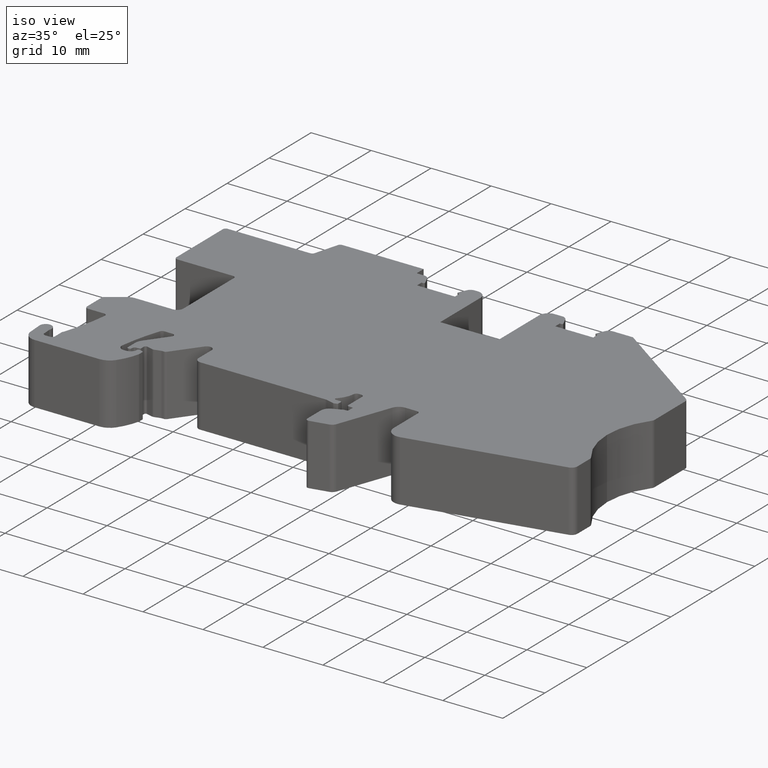
[diagram: clean part render]
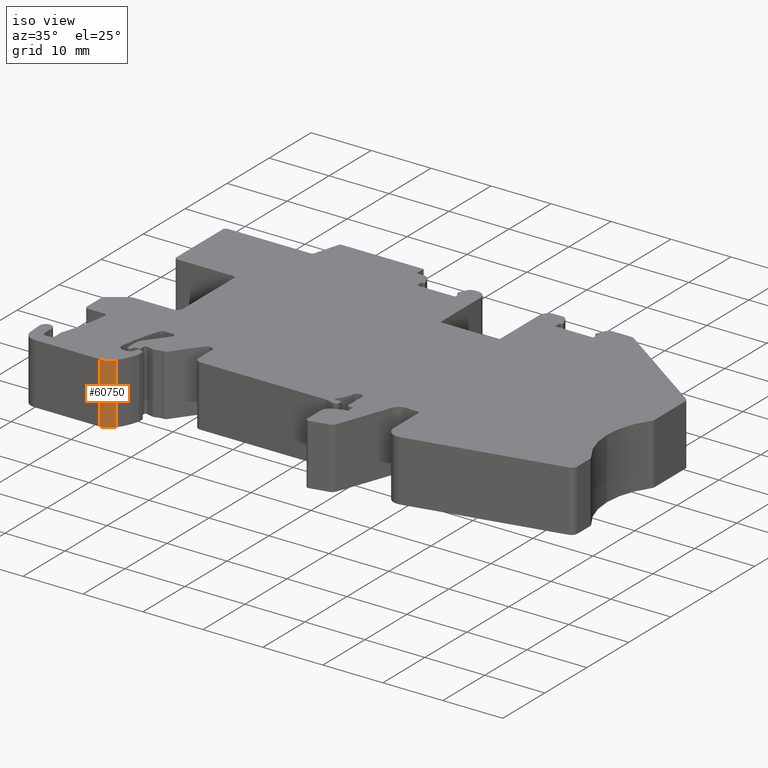
[diagram: same view with one face highlighted and labeled with its STEP entity id]
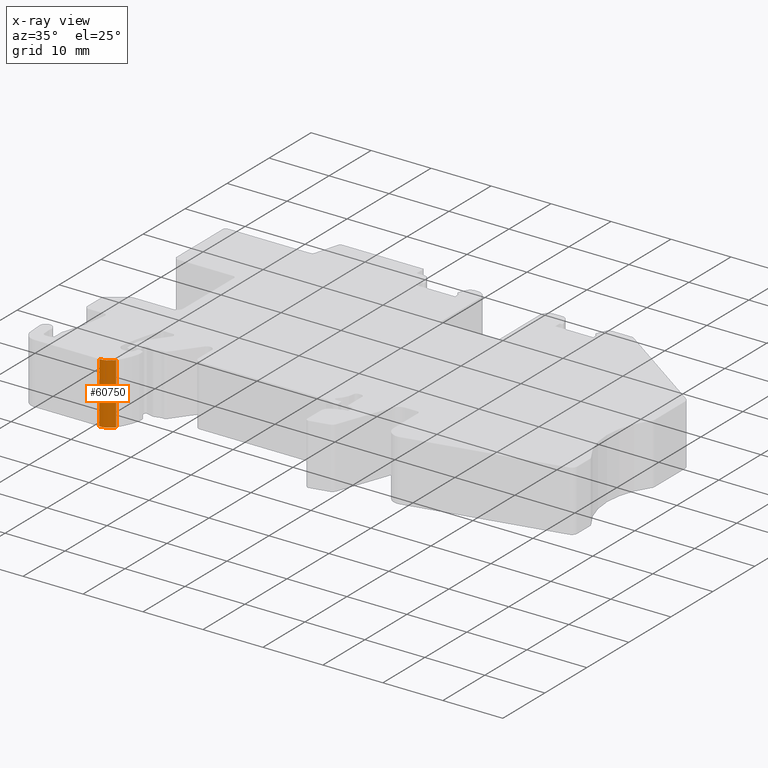
[diagram: x-ray of the same camera — body ghosted, the highlighted face saturated]
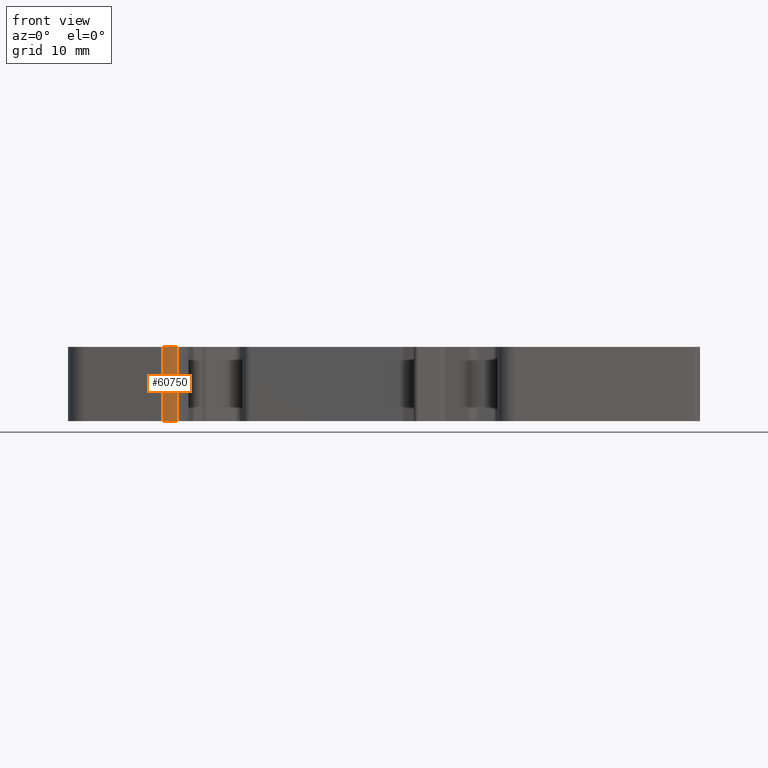
[diagram: same view with one face highlighted and labeled with its STEP entity id]
A machine part, iso view. The second image highlights one B-rep face of the part: STEP entity #60750.
The next image is the same camera in x-ray: the body ghosted, the highlighted face saturated — about 0% of this face is hidden behind the body in this view.
A second angle (front view) of the same face is appended — the face is thin or edge-on in the first view.
In plain terms, the highlighted cylindrical surface (edge-blend (fillet) strip) has radius 2.5 mm, axis along (0, 0, 1).
Its self-contained STEP definition (entity closure, byte-faithful):
#8220=CARTESIAN_POINT('',(11.319603903941,-7.1999995,10.1));
#8230=VERTEX_POINT('',#8220);
#8260=CARTESIAN_POINT('',(11.3196039039407,-4.6999994999994,10.1));
#8270=DIRECTION('',(0.,0.,1.));
#8280=DIRECTION('',(1.,0.,0.));
#8290=AXIS2_PLACEMENT_3D('',#8260,#8270,#8280);
#8300=CIRCLE('',#8290,2.5000000000006);
#8310=CARTESIAN_POINT('',(13.3727994053485,-6.12631932142861,10.1));
#8320=VERTEX_POINT('',#8310);
#8330=EDGE_CURVE('',#8230,#8320,#8300,.T.);
#17890=CARTESIAN_POINT('',(13.3727994053485,-6.12631932142861,20.25));
#17900=VERTEX_POINT('',#17890);
#17930=CARTESIAN_POINT('',(11.3196039039407,-4.6999994999994,20.25));
#17940=DIRECTION('',(0.,0.,1.));
#17950=DIRECTION('',(1.,0.,0.));
#17960=AXIS2_PLACEMENT_3D('',#17930,#17940,#17950);
#17970=CIRCLE('',#17960,2.5000000000006);
#17980=CARTESIAN_POINT('',(11.319603903941,-7.1999995,20.25));
#17990=VERTEX_POINT('',#17980);
#18000=EDGE_CURVE('',#17990,#17900,#17970,.T.);
#60420=CARTESIAN_POINT('',(11.319603903941,-7.1999995,10.1));
#60430=DIRECTION('',(0.,0.,1.));
#60440=VECTOR('',#60430,1.);
#60450=LINE('',#60420,#60440);
#60460=EDGE_CURVE('',#8230,#17990,#60450,.T.);
#60590=CARTESIAN_POINT('',(11.3196039039407,-4.6999994999994,10.1));
#60600=DIRECTION('',(0.,0.,1.));
#60610=DIRECTION('',(1.,0.,0.));
#60620=AXIS2_PLACEMENT_3D('',#60590,#60600,#60610);
#60630=CYLINDRICAL_SURFACE('',#60620,2.5000000000006);
#60640=ORIENTED_EDGE('',*,*,#60460,.F.);
#60650=ORIENTED_EDGE('',*,*,#18000,.F.);
#60660=CARTESIAN_POINT('',(13.3727994053485,-6.12631932142861,10.1));
#60670=DIRECTION('',(0.,0.,1.));
#60680=VECTOR('',#60670,1.);
#60690=LINE('',#60660,#60680);
#60700=EDGE_CURVE('',#8320,#17900,#60690,.T.);
#60710=ORIENTED_EDGE('',*,*,#60700,.T.);
#60720=ORIENTED_EDGE('',*,*,#8330,.T.);
#60730=EDGE_LOOP('',(#60720,#60710,#60650,#60640));
#60740=FACE_OUTER_BOUND('',#60730,.T.);
#60750=ADVANCED_FACE('',(#60740),#60630,.T.);